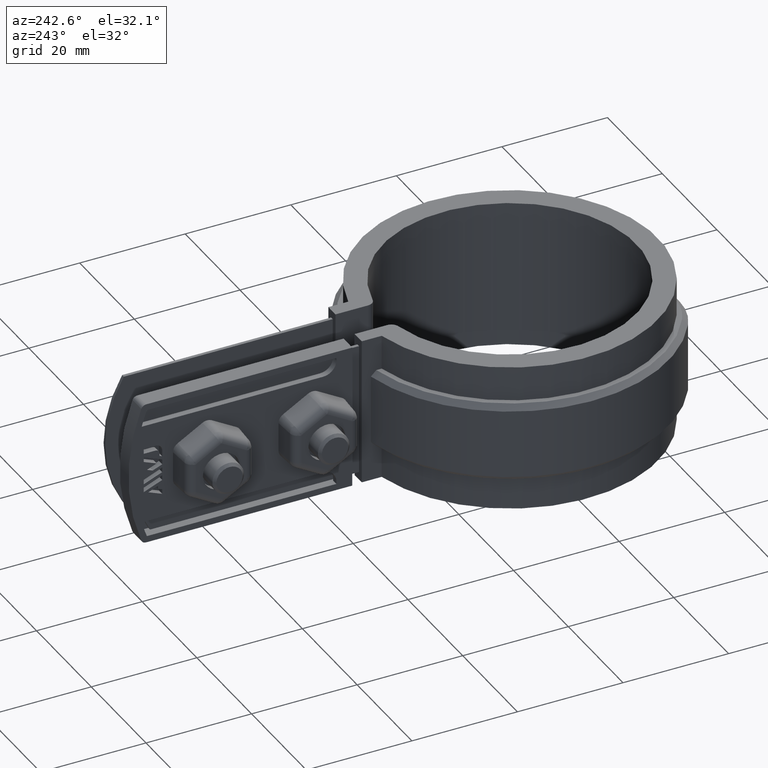
[diagram: clean part render]
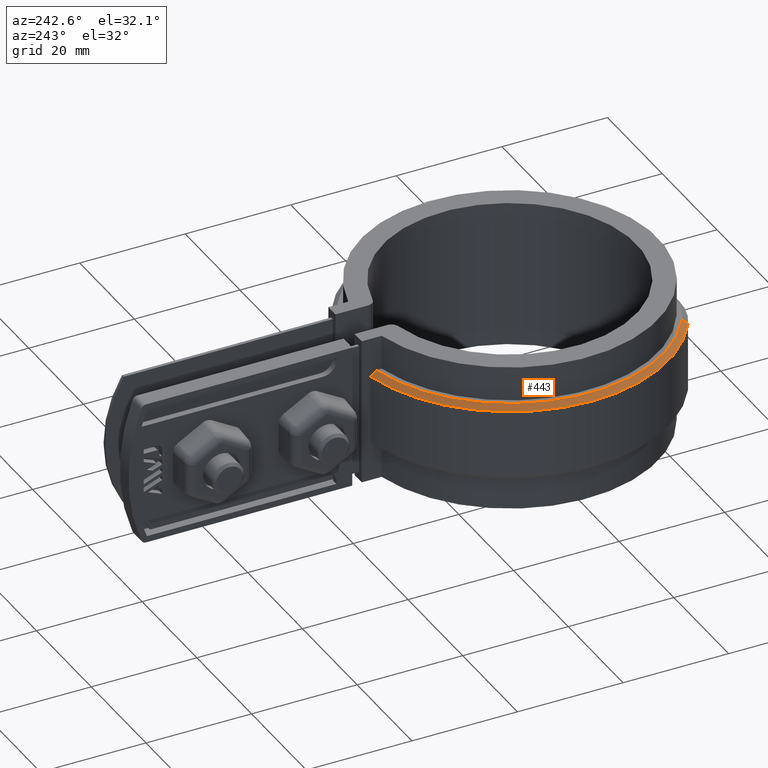
[diagram: same view with one face highlighted and labeled with its STEP entity id]
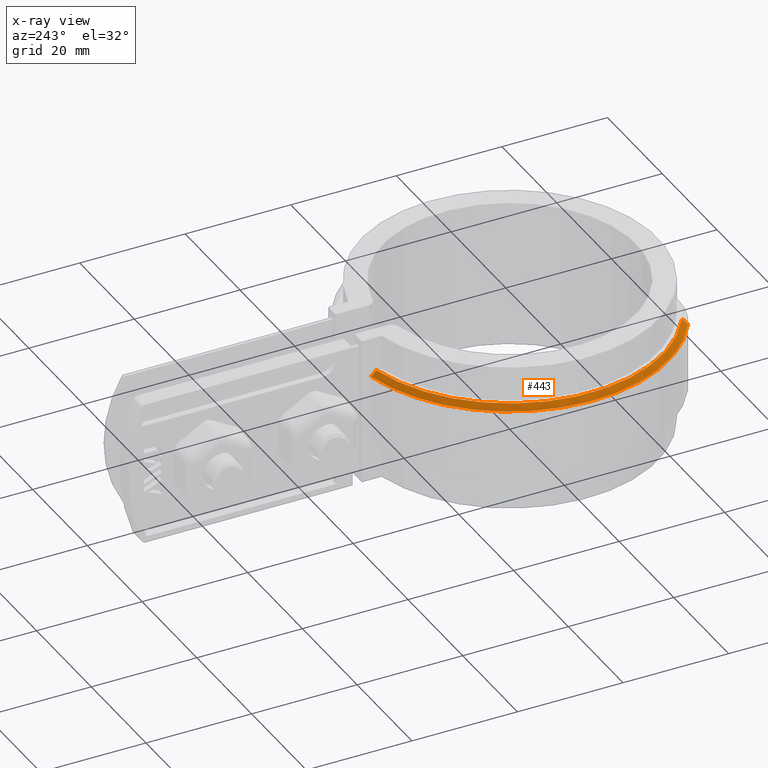
[diagram: x-ray of the same camera — body ghosted, the highlighted face saturated]
A machine part, auxiliary view. The second image highlights one B-rep face of the part: STEP entity #443.
The next image is the same camera in x-ray: the body ghosted, the highlighted face saturated — about 0% of this face is hidden behind the body in this view.
In plain terms, the highlighted conical surface has half-angle 45 deg.
Its self-contained STEP definition (entity closure, byte-faithful):
#443 = ADVANCED_FACE( '', ( #897 ), #898, .T. );
#897 = FACE_OUTER_BOUND( '', #1996, .T. );
#898 = CONICAL_SURFACE( '', #1997, 29.0950000000000, 0.785398163397449 );
#1996 = EDGE_LOOP( '', ( #4751, #4752, #4753, #4754 ) );
#1997 = AXIS2_PLACEMENT_3D( '', #4755, #4756, #4757 );
#4751 = ORIENTED_EDGE( '', *, *, #7626, .F. );
#4752 = ORIENTED_EDGE( '', *, *, #7644, .F. );
#4753 = ORIENTED_EDGE( '', *, *, #7637, .F. );
#4754 = ORIENTED_EDGE( '', *, *, #7645, .F. );
#4755 = CARTESIAN_POINT( '', ( 8.67361737988404E-016, 0.000000000000000, -5.00000000000000 ) );
#4756 = DIRECTION( '', ( 0.000000000000000, 0.000000000000000, -1.00000000000000 ) );
#4757 = DIRECTION( '', ( -1.00000000000000, 0.000000000000000, 0.000000000000000 ) );
#7626 = EDGE_CURVE( '', #8786, #8788, #8789, .F. );
#7637 = EDGE_CURVE( '', #8807, #8808, #8809, .T. );
#7644 = EDGE_CURVE( '', #8808, #8786, #8820, .T. );
#7645 = EDGE_CURVE( '', #8788, #8807, #8821, .F. );
#8786 = VERTEX_POINT( '', #11621 );
#8788 = VERTEX_POINT( '', #11624 );
#8789 = B_SPLINE_CURVE_WITH_KNOTS( '', 3, ( #11625, #11626, #11627, #11628 ), .UNSPECIFIED., .F., .F., ( 4, 4 ), ( 707.140185523541, 707.141617626903 ), .UNSPECIFIED. );
#8807 = VERTEX_POINT( '', #11654 );
#8808 = VERTEX_POINT( '', #11655 );
#8809 = LINE( '', #11656, #11657 );
#8820 = CIRCLE( '', #11682, 30.0950000000000 );
#8821 = CIRCLE( '', #11683, 29.0950000000000 );
#11621 = CARTESIAN_POINT( '', ( -6.10000000000000, 29.4703075145137, -6.00000000000000 ) );
#11624 = CARTESIAN_POINT( '', ( -6.10000000000000, 28.4483571581911, -5.00000000000000 ) );
#11625 = CARTESIAN_POINT( '', ( -6.10000000000000, 28.4483571581631, -4.99999999997267 ) );
#11626 = CARTESIAN_POINT( '', ( -6.10000000000000, 28.7891348895041, -5.33320387049153 ) );
#11627 = CARTESIAN_POINT( '', ( -6.10000000000000, 29.1297806771434, -5.66654159779879 ) );
#11628 = CARTESIAN_POINT( '', ( -6.10000000000000, 29.4703075145471, -6.00000000003278 ) );
#11654 = CARTESIAN_POINT( '', ( -15.4421189501993, -24.6588723855714, -5.00000000000000 ) );
#11655 = CARTESIAN_POINT( '', ( -15.9728671526465, -25.5064019399818, -6.00000000000000 ) );
#11656 = CARTESIAN_POINT( '', ( -15.4421189501993, -24.6588723855714, -5.00000000000000 ) );
#11657 = VECTOR( '', #14151, 1000.00000000000 );
#11682 = AXIS2_PLACEMENT_3D( '', #14158, #14159, #14160 );
#11683 = AXIS2_PLACEMENT_3D( '', #14161, #14162, #14163 );
#14151 = DIRECTION( '', ( -0.375295653052939, -0.599293895179626, -0.707106781186547 ) );
#14158 = CARTESIAN_POINT( '', ( 8.67361737988404E-016, 0.000000000000000, -6.00000000000000 ) );
#14159 = DIRECTION( '', ( 0.000000000000000, 0.000000000000000, -1.00000000000000 ) );
#14160 = DIRECTION( '', ( -1.00000000000000, 0.000000000000000, 0.000000000000000 ) );
#14161 = CARTESIAN_POINT( '', ( 8.67361737988404E-016, 0.000000000000000, -5.00000000000000 ) );
#14162 = DIRECTION( '', ( 0.000000000000000, 0.000000000000000, -1.00000000000000 ) );
#14163 = DIRECTION( '', ( -1.00000000000000, 0.000000000000000, 0.000000000000000 ) );